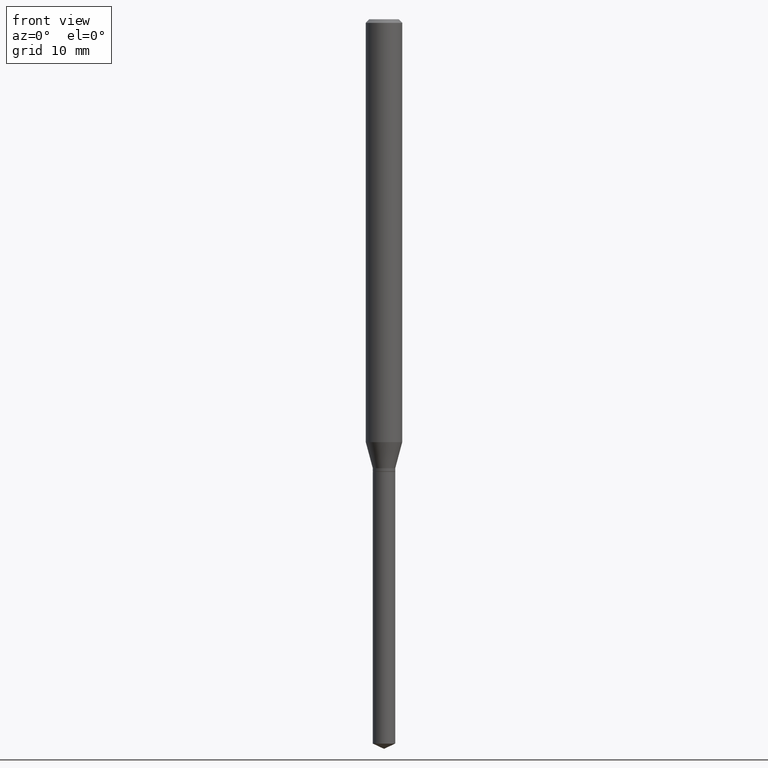
[diagram: clean part render]
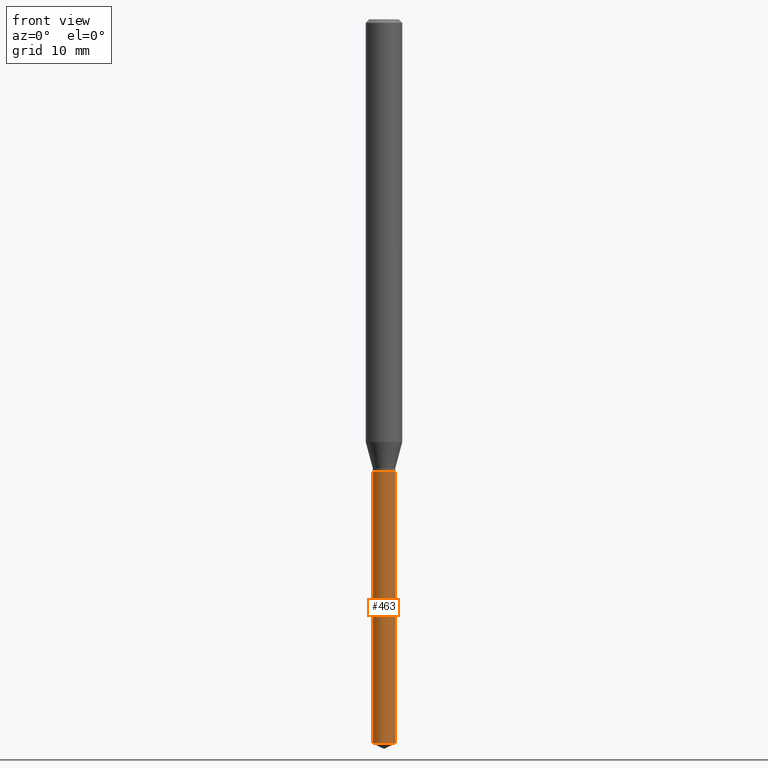
[diagram: same view with one face highlighted and labeled with its STEP entity id]
A machine part, front view. The second image highlights one B-rep face of the part: STEP entity #463.
In plain terms, the highlighted cylindrical surface (edge-blend (fillet) strip) has radius 0.9246 mm, axis along (-0, 0, 1).
Its self-contained STEP definition (entity closure, byte-faithful):
#18 = ORIENTED_EDGE ( 'NONE', *, *, #249, .T. ) ;
#27 = DIRECTION ( 'NONE',  ( 1.000000000000000000, -6.982962677686273810E-15, 0.000000000000000000 ) ) ;
#33 = LINE ( 'NONE', #409, #392 ) ;
#45 = CARTESIAN_POINT ( 'NONE',  ( 0.03639999999999998792, -8.442494056770533327E-15, -2.345226401243158065 ) ) ;
#48 = VERTEX_POINT ( 'NONE', #390 ) ;
#59 = DIRECTION ( 'NONE',  ( -2.445468806185136597E-29, 3.491481338843145583E-15, 1.000000000000000000 ) ) ;
#81 = VECTOR ( 'NONE', #406, 39.37007874015748143 ) ;
#138 = ORIENTED_EDGE ( 'NONE', *, *, #194, .T. ) ;
#147 = CARTESIAN_POINT ( 'NONE',  ( -0.03640000000000000180, -6.392331336269535190E-15, -1.464599999999999902 ) ) ;
#151 = CARTESIAN_POINT ( 'NONE',  ( -0.03640000000000000180, -4.854986013052993820E-15, -1.464599999999999902 ) ) ;
#157 = CARTESIAN_POINT ( 'NONE',  ( 0.03640000000000000180, -5.367803410337450588E-15, -1.464599999999999902 ) ) ;
#158 = VERTEX_POINT ( 'NONE', #147 ) ;
#163 = CYLINDRICAL_SURFACE ( 'NONE', #298, 0.03640000000000000180 ) ;
#177 = EDGE_LOOP ( 'NONE', ( #250, #18, #138, #327 ) ) ;
#178 = DIRECTION ( 'NONE',  ( -2.445468806185136597E-29, 3.491481338843145583E-15, 1.000000000000000000 ) ) ;
#194 = EDGE_CURVE ( 'NONE', #345, #357, #33, .T. ) ;
#233 = EDGE_CURVE ( 'NONE', #48, #158, #339, .T. ) ;
#242 = CARTESIAN_POINT ( 'NONE',  ( 3.581633613538751591E-29, -5.113623568869670202E-15, -1.464599999999999902 ) ) ;
#249 = EDGE_CURVE ( 'NONE', #48, #345, #435, .T. ) ;
#250 = ORIENTED_EDGE ( 'NONE', *, *, #233, .F. ) ;
#264 = EDGE_CURVE ( 'NONE', #158, #357, #450, .T. ) ;
#291 = DIRECTION ( 'NONE',  ( 1.000000000000000000, -6.982962677686273810E-15, 0.000000000000000000 ) ) ;
#298 = AXIS2_PLACEMENT_3D ( 'NONE', #242, #449, #326 ) ;
#320 = FACE_OUTER_BOUND ( 'NONE', #177, .T. ) ;
#326 = DIRECTION ( 'NONE',  ( 1.000000000000000000, -6.982962677686273810E-15, 0.000000000000000000 ) ) ;
#327 = ORIENTED_EDGE ( 'NONE', *, *, #264, .F. ) ;
#339 = LINE ( 'NONE', #151, #81 ) ;
#345 = VERTEX_POINT ( 'NONE', #45 ) ;
#357 = VERTEX_POINT ( 'NONE', #157 ) ;
#361 = AXIS2_PLACEMENT_3D ( 'NONE', #404, #59, #27 ) ;
#367 = AXIS2_PLACEMENT_3D ( 'NONE', #484, #178, #291 ) ;
#369 = DIRECTION ( 'NONE',  ( -2.445468806185136877E-29, 3.491481338843145188E-15, 1.000000000000000000 ) ) ;
#390 = CARTESIAN_POINT ( 'NONE',  ( -0.03639999999999998792, -7.929676659486076559E-15, -2.345226401243158065 ) ) ;
#392 = VECTOR ( 'NONE', #369, 39.37007874015748143 ) ;
#404 = CARTESIAN_POINT ( 'NONE',  ( 5.735178007681969204E-29, -8.188314215302752941E-15, -2.345226401243158065 ) ) ;
#406 = DIRECTION ( 'NONE',  ( -2.445468806185136877E-29, 3.491481338843145188E-15, 1.000000000000000000 ) ) ;
#409 = CARTESIAN_POINT ( 'NONE',  ( 0.03640000000000000180, -5.367803410337450588E-15, -1.464599999999999902 ) ) ;
#435 = CIRCLE ( 'NONE', #361, 0.03640000000000000180 ) ;
#449 = DIRECTION ( 'NONE',  ( -2.445468806185136597E-29, 3.491481338843145583E-15, 1.000000000000000000 ) ) ;
#450 = CIRCLE ( 'NONE', #367, 0.03640000000000000180 ) ;
#463 = ADVANCED_FACE ( 'NONE', ( #320 ), #163, .T. ) ;
#484 = CARTESIAN_POINT ( 'NONE',  ( 3.581633613538751591E-29, -5.113623568869670202E-15, -1.464599999999999902 ) ) ;